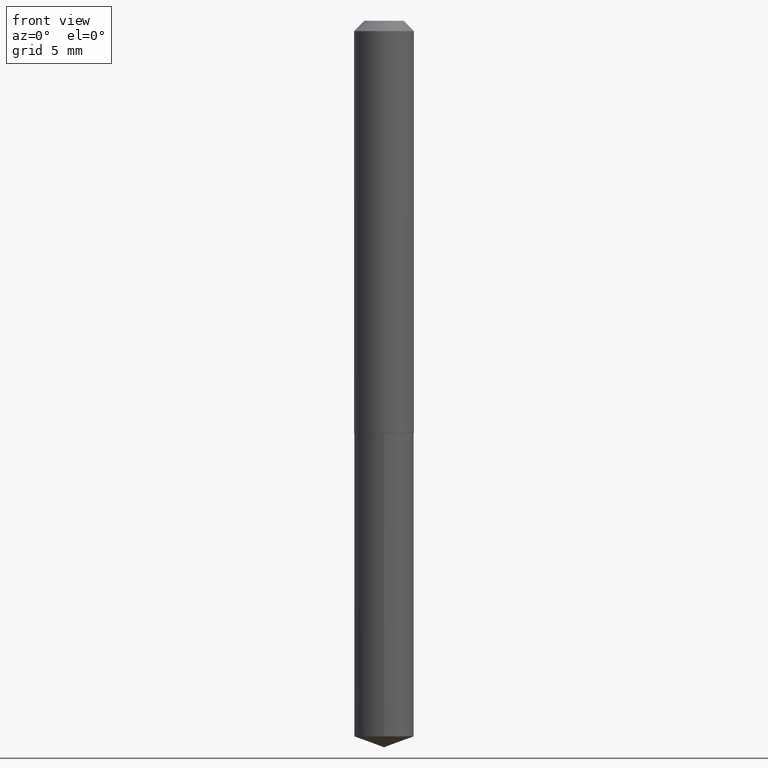
[diagram: clean part render]
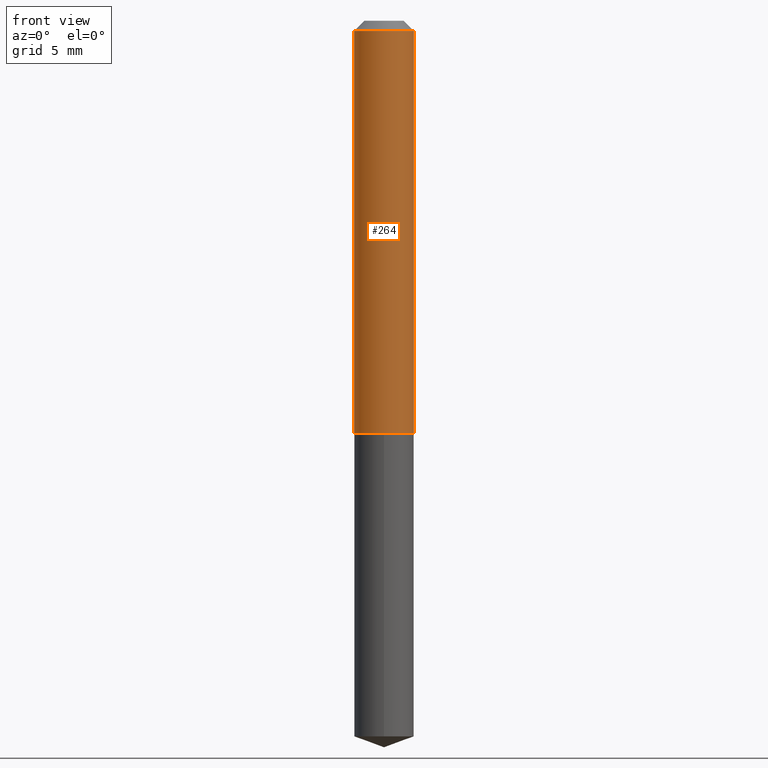
[diagram: same view with one face highlighted and labeled with its STEP entity id]
A machine part, front view. The second image highlights one B-rep face of the part: STEP entity #264.
In plain terms, the highlighted cylindrical surface (edge-blend (fillet) strip) has radius 2.286 mm, axis along (-0, 0, 1).
Its self-contained STEP definition (entity closure, byte-faithful):
#12 = ORIENTED_EDGE ( 'NONE', *, *, #59, .T. ) ;
#19 = LINE ( 'NONE', #24, #380 ) ;
#22 = DIRECTION ( 'NONE',  ( -2.445468806185136597E-29, 3.491481338843145583E-15, 1.000000000000000000 ) ) ;
#24 = CARTESIAN_POINT ( 'NONE',  ( -0.09000000000000006606, 6.394884621840906367E-16, -4.427041581229418623E-30 ) ) ;
#29 = CYLINDRICAL_SURFACE ( 'NONE', #44, 0.09000000000000006606 ) ;
#36 = CIRCLE ( 'NONE', #311, 0.08999999999999999667 ) ;
#44 = AXIS2_PLACEMENT_3D ( 'NONE', #245, #250, #334 ) ;
#59 = EDGE_CURVE ( 'NONE', #286, #197, #87, .T. ) ;
#64 = CARTESIAN_POINT ( 'NONE',  ( -0.09000000000000013545, -3.696931360659096890E-15, -1.242000000000000215 ) ) ;
#87 = CIRCLE ( 'NONE', #135, 0.09000000000000013545 ) ;
#103 = ORIENTED_EDGE ( 'NONE', *, *, #178, .F. ) ;
#134 = VERTEX_POINT ( 'NONE', #296 ) ;
#135 = AXIS2_PLACEMENT_3D ( 'NONE', #348, #320, #214 ) ;
#149 = CARTESIAN_POINT ( 'NONE',  ( 7.642090019328602662E-31, -1.091087918388490267E-16, -0.03125000000000020817 ) ) ;
#178 = EDGE_CURVE ( 'NONE', #286, #134, #19, .T. ) ;
#182 = EDGE_CURVE ( 'NONE', #134, #314, #36, .T. ) ;
#189 = EDGE_LOOP ( 'NONE', ( #103, #12, #234, #339 ) ) ;
#192 = DIRECTION ( 'NONE',  ( -2.445468806185136877E-29, 3.491481338843145188E-15, 1.000000000000000000 ) ) ;
#197 = VERTEX_POINT ( 'NONE', #269 ) ;
#214 = DIRECTION ( 'NONE',  ( 1.000000000000000000, -6.982962677686263555E-15, 0.000000000000000000 ) ) ;
#234 = ORIENTED_EDGE ( 'NONE', *, *, #342, .T. ) ;
#235 = DIRECTION ( 'NONE',  ( -2.445468806185136877E-29, 3.491481338843145188E-15, 1.000000000000000000 ) ) ;
#245 = CARTESIAN_POINT ( 'NONE',  ( 0.000000000000000000, 0.000000000000000000, 0.000000000000000000 ) ) ;
#250 = DIRECTION ( 'NONE',  ( -2.445468806185136597E-29, 3.491481338843145583E-15, 1.000000000000000000 ) ) ;
#264 = ADVANCED_FACE ( 'NONE', ( #304 ), #29, .T. ) ;
#267 = VECTOR ( 'NONE', #192, 39.37007874015748143 ) ;
#268 = DIRECTION ( 'NONE',  ( 1.000000000000000000, -6.982962677686266711E-15, 0.000000000000000000 ) ) ;
#269 = CARTESIAN_POINT ( 'NONE',  ( 0.09000000000000013545, -4.964886463834952576E-15, -1.242000000000000215 ) ) ;
#274 = CARTESIAN_POINT ( 'NONE',  ( 0.08999999999999999667, -7.375754328306130652E-16, -0.03125000000000020817 ) ) ;
#286 = VERTEX_POINT ( 'NONE', #64 ) ;
#296 = CARTESIAN_POINT ( 'NONE',  ( -0.08999999999999999667, -1.583275845156927233E-15, -0.03125000000000020817 ) ) ;
#297 = LINE ( 'NONE', #326, #267 ) ;
#304 = FACE_OUTER_BOUND ( 'NONE', #189, .T. ) ;
#311 = AXIS2_PLACEMENT_3D ( 'NONE', #149, #22, #268 ) ;
#314 = VERTEX_POINT ( 'NONE', #274 ) ;
#320 = DIRECTION ( 'NONE',  ( -2.445468806185136597E-29, 3.491481338843145583E-15, 1.000000000000000000 ) ) ;
#326 = CARTESIAN_POINT ( 'NONE',  ( 0.09000000000000006606, -6.284666409917644575E-16, 4.388559098216345437E-30 ) ) ;
#334 = DIRECTION ( 'NONE',  ( 1.000000000000000000, -6.982962677686266711E-15, 4.876176775795935793E-29 ) ) ;
#339 = ORIENTED_EDGE ( 'NONE', *, *, #182, .F. ) ;
#342 = EDGE_CURVE ( 'NONE', #197, #314, #297, .T. ) ;
#348 = CARTESIAN_POINT ( 'NONE',  ( 3.037272257281940407E-29, -4.336419822843187625E-15, -1.242000000000000215 ) ) ;
#380 = VECTOR ( 'NONE', #235, 39.37007874015748143 ) ;